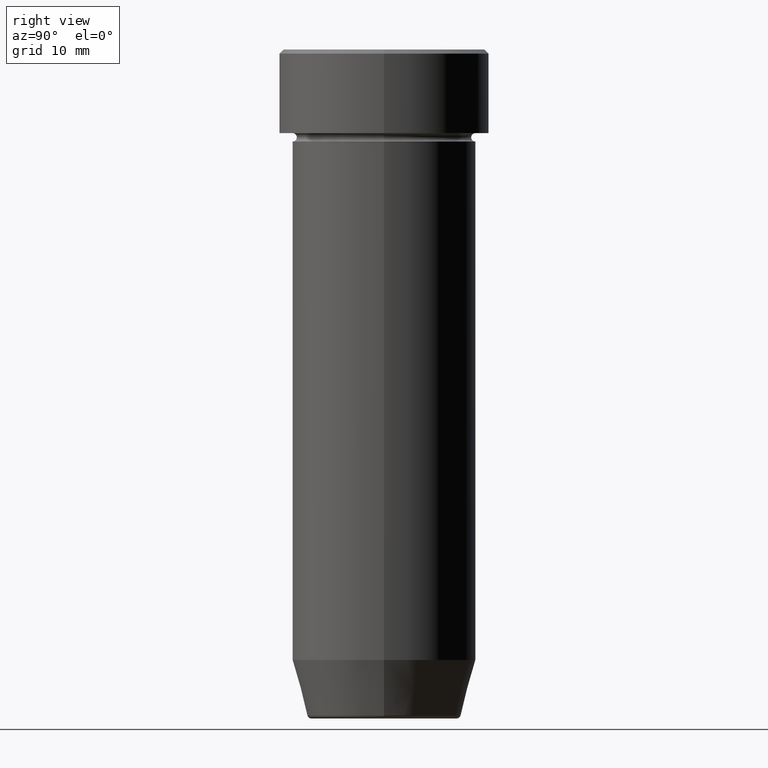
[diagram: clean part render]
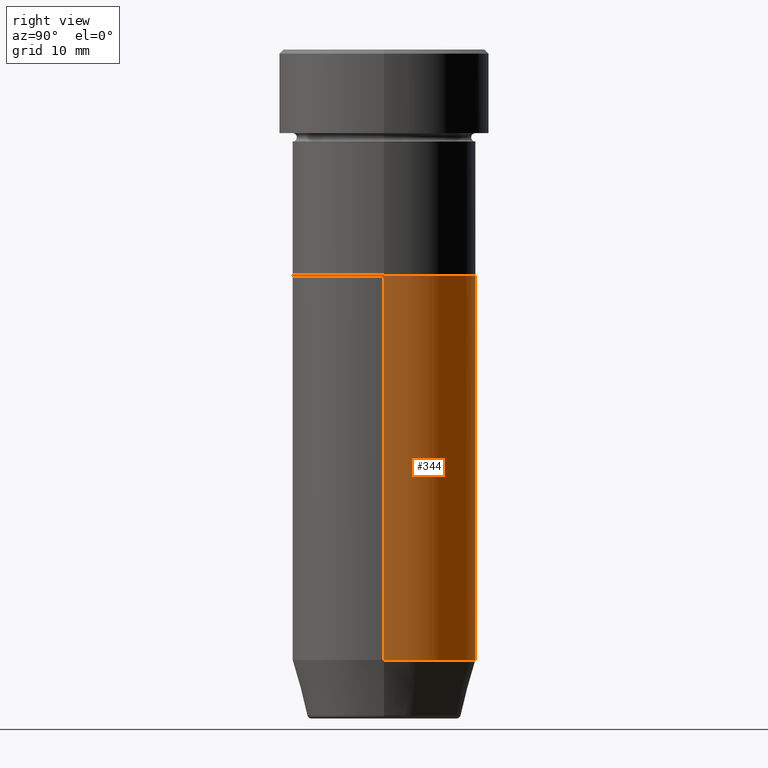
[diagram: same view with one face highlighted and labeled with its STEP entity id]
A machine part, right view. The second image highlights one B-rep face of the part: STEP entity #344.
In plain terms, the highlighted cylindrical surface (partial cylindrical patch) has radius 11 mm, axis along (-0, -0, 1).
Its self-contained STEP definition (entity closure, byte-faithful):
#9 = DIRECTION ( 'NONE',  ( -0.000000000000000000, -0.000000000000000000, 1.000000000000000000 ) ) ;
#22 = CARTESIAN_POINT ( 'NONE',  ( 0.000000000000000000, 0.000000000000000000, 0.000000000000000000 ) ) ;
#27 = CARTESIAN_POINT ( 'NONE',  ( -11.00000000000000000, 1.347111479062088405E-15, 0.000000000000000000 ) ) ;
#50 = CARTESIAN_POINT ( 'NONE',  ( 11.00000000000000000, 0.000000000000000000, -73.00000000000000000 ) ) ;
#64 = DIRECTION ( 'NONE',  ( -0.000000000000000000, -0.000000000000000000, 1.000000000000000000 ) ) ;
#101 = ORIENTED_EDGE ( 'NONE', *, *, #439, .T. ) ;
#105 = DIRECTION ( 'NONE',  ( -0.000000000000000000, -0.000000000000000000, 1.000000000000000000 ) ) ;
#106 = VECTOR ( 'NONE', #64, 1000.000000000000000 ) ;
#119 = ORIENTED_EDGE ( 'NONE', *, *, #348, .T. ) ;
#180 = EDGE_LOOP ( 'NONE', ( #101, #119, #188, #186 ) ) ;
#186 = ORIENTED_EDGE ( 'NONE', *, *, #368, .F. ) ;
#188 = ORIENTED_EDGE ( 'NONE', *, *, #211, .F. ) ;
#190 = CARTESIAN_POINT ( 'NONE',  ( 0.000000000000000000, 0.000000000000000000, -73.00000000000000000 ) ) ;
#211 = EDGE_CURVE ( 'NONE', #329, #387, #303, .T. ) ;
#229 = CARTESIAN_POINT ( 'NONE',  ( -11.00000000000000000, 1.347111479062088405E-15, -27.00000000000000000 ) ) ;
#230 = CARTESIAN_POINT ( 'NONE',  ( 0.000000000000000000, 0.000000000000000000, -27.00000000000000000 ) ) ;
#244 = AXIS2_PLACEMENT_3D ( 'NONE', #190, #9, #501 ) ;
#303 = CIRCLE ( 'NONE', #536, 11.00000000000000000 ) ;
#306 = VERTEX_POINT ( 'NONE', #433 ) ;
#329 = VERTEX_POINT ( 'NONE', #575 ) ;
#334 = DIRECTION ( 'NONE',  ( 1.000000000000000000, 0.000000000000000000, 0.000000000000000000 ) ) ;
#341 = CARTESIAN_POINT ( 'NONE',  ( 11.00000000000000000, 0.000000000000000000, 0.000000000000000000 ) ) ;
#344 = ADVANCED_FACE ( 'NONE', ( #438 ), #522, .T. ) ;
#348 = EDGE_CURVE ( 'NONE', #306, #387, #391, .T. ) ;
#368 = EDGE_CURVE ( 'NONE', #546, #329, #389, .T. ) ;
#370 = AXIS2_PLACEMENT_3D ( 'NONE', #22, #565, #334 ) ;
#371 = DIRECTION ( 'NONE',  ( -0.000000000000000000, -0.000000000000000000, 1.000000000000000000 ) ) ;
#387 = VERTEX_POINT ( 'NONE', #229 ) ;
#389 = LINE ( 'NONE', #341, #441 ) ;
#391 = LINE ( 'NONE', #27, #106 ) ;
#433 = CARTESIAN_POINT ( 'NONE',  ( -11.00000000000000000, 1.347111479062088405E-15, -73.00000000000000000 ) ) ;
#438 = FACE_OUTER_BOUND ( 'NONE', #180, .T. ) ;
#439 = EDGE_CURVE ( 'NONE', #546, #306, #550, .T. ) ;
#441 = VECTOR ( 'NONE', #105, 1000.000000000000000 ) ;
#496 = DIRECTION ( 'NONE',  ( 1.000000000000000000, 0.000000000000000000, 0.000000000000000000 ) ) ;
#501 = DIRECTION ( 'NONE',  ( 1.000000000000000000, 0.000000000000000000, 0.000000000000000000 ) ) ;
#522 = CYLINDRICAL_SURFACE ( 'NONE', #370, 11.00000000000000000 ) ;
#536 = AXIS2_PLACEMENT_3D ( 'NONE', #230, #371, #496 ) ;
#546 = VERTEX_POINT ( 'NONE', #50 ) ;
#550 = CIRCLE ( 'NONE', #244, 11.00000000000000000 ) ;
#565 = DIRECTION ( 'NONE',  ( -0.000000000000000000, -0.000000000000000000, 1.000000000000000000 ) ) ;
#575 = CARTESIAN_POINT ( 'NONE',  ( 11.00000000000000000, 0.000000000000000000, -27.00000000000000000 ) ) ;